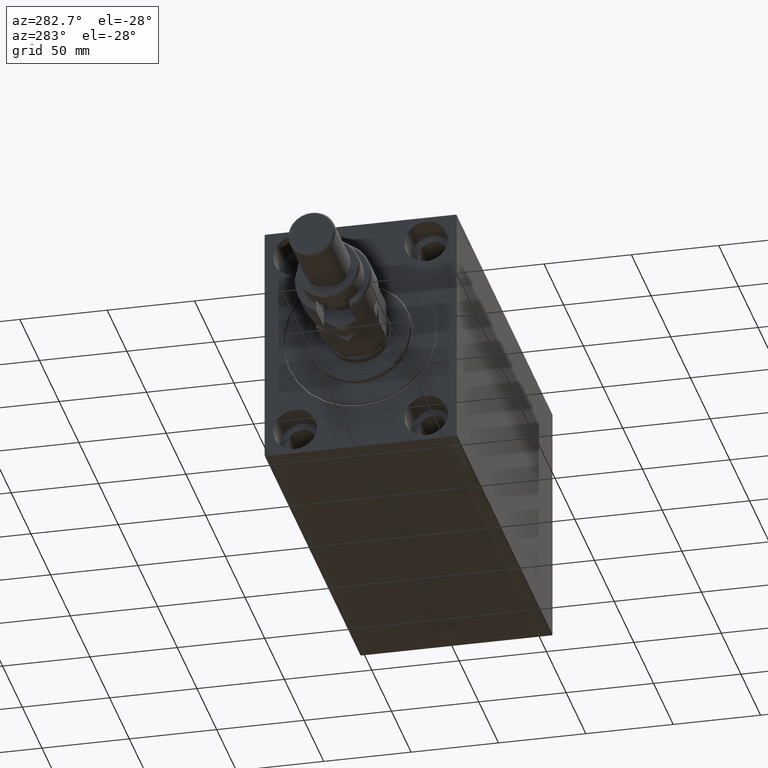
[diagram: clean part render]
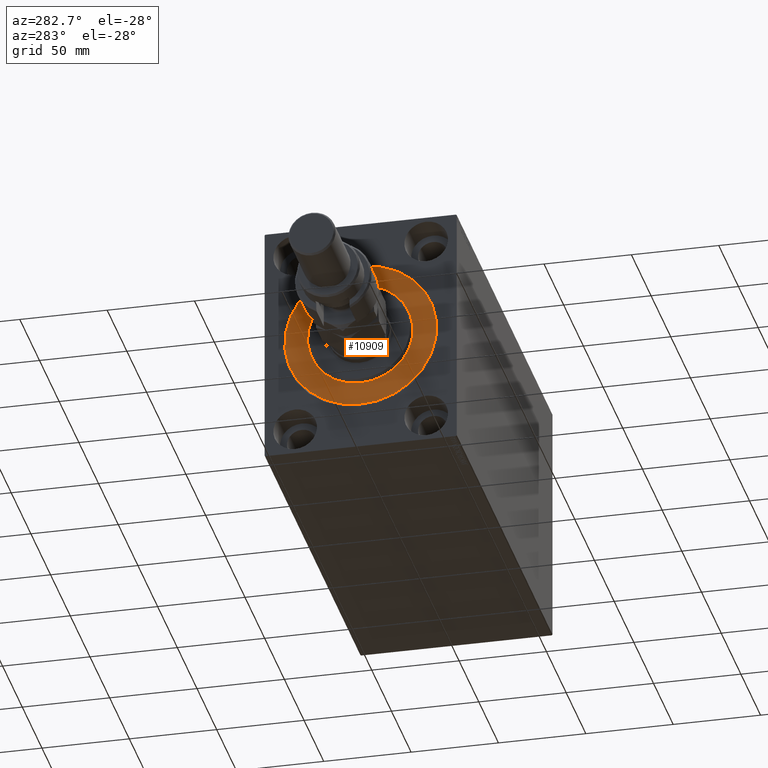
[diagram: same view with one face highlighted and labeled with its STEP entity id]
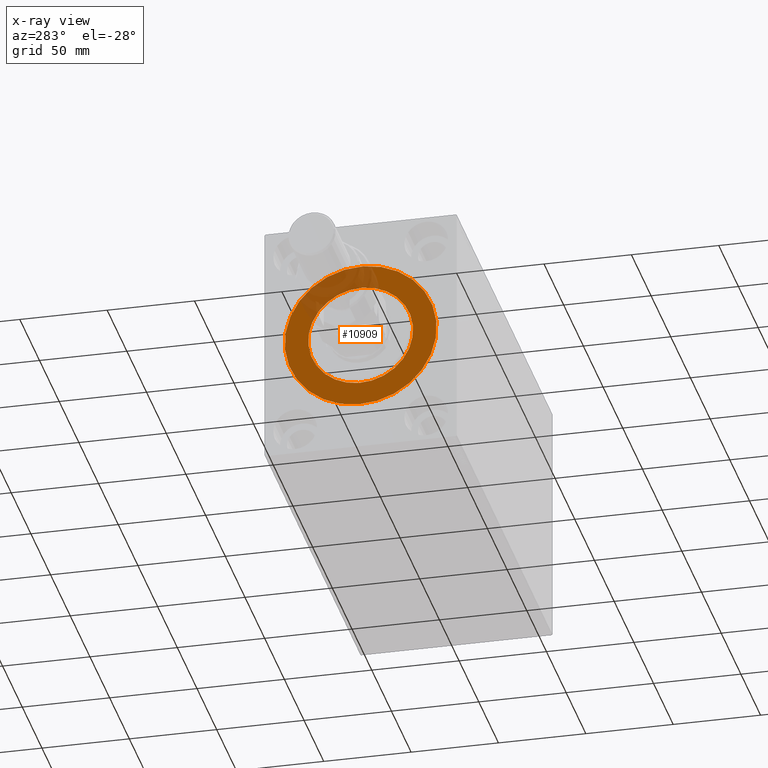
[diagram: x-ray of the same camera — body ghosted, the highlighted face saturated]
A machine part, auxiliary view. The second image highlights one B-rep face of the part: STEP entity #10909.
The next image is the same camera in x-ray: the body ghosted, the highlighted face saturated — about 20% of this face is hidden behind the body in this view.
In plain terms, the highlighted planar face has unit normal (1, 0, -0).
Its self-contained STEP definition (entity closure, byte-faithful):
#27 = AXIS2_PLACEMENT_3D ( 'NONE', #20555, #44895, #26939 ) ;
#103 = ORIENTED_EDGE ( 'NONE', *, *, #6291, .F. ) ;
#187 = AXIS2_PLACEMENT_3D ( 'NONE', #9192, #1411, #12962 ) ;
#271 = CARTESIAN_POINT ( 'NONE',  ( 0.000000000000000000, 0.000000000000000000, 30.00000000000000000 ) ) ;
#492 = EDGE_LOOP ( 'NONE', ( #103, #46536 ) ) ;
#1411 = DIRECTION ( 'NONE',  ( 1.000000000000000000, -0.000000000000000000, 0.000000000000000000 ) ) ;
#2855 = DIRECTION ( 'NONE',  ( -1.000000000000000000, 0.000000000000000000, 0.000000000000000000 ) ) ;
#3322 = DIRECTION ( 'NONE',  ( 0.000000000000000000, 0.000000000000000000, 1.000000000000000000 ) ) ;
#3651 = EDGE_LOOP ( 'NONE', ( #6127, #36936 ) ) ;
#4516 = VERTEX_POINT ( 'NONE', #31352 ) ;
#5693 = FACE_OUTER_BOUND ( 'NONE', #492, .T. ) ;
#6127 = ORIENTED_EDGE ( 'NONE', *, *, #20245, .F. ) ;
#6291 = EDGE_CURVE ( 'NONE', #16352, #7005, #24012, .T. ) ;
#6914 = CARTESIAN_POINT ( 'NONE',  ( 0.000000000000000000, 0.000000000000000000, -43.50000000000000000 ) ) ;
#7005 = VERTEX_POINT ( 'NONE', #46179 ) ;
#7030 = AXIS2_PLACEMENT_3D ( 'NONE', #42031, #28087, #38964 ) ;
#7408 = EDGE_CURVE ( 'NONE', #4516, #35453, #32341, .T. ) ;
#9192 = CARTESIAN_POINT ( 'NONE',  ( 0.000000000000000000, 0.000000000000000000, 0.000000000000000000 ) ) ;
#10909 = ADVANCED_FACE ( 'NONE', ( #34481, #5693 ), #13007, .F. ) ;
#12962 = DIRECTION ( 'NONE',  ( 0.000000000000000000, 0.000000000000000000, -1.000000000000000000 ) ) ;
#13007 = PLANE ( 'NONE',  #27 ) ;
#16352 = VERTEX_POINT ( 'NONE', #6914 ) ;
#18731 = AXIS2_PLACEMENT_3D ( 'NONE', #46063, #2855, #3322 ) ;
#20245 = EDGE_CURVE ( 'NONE', #35453, #4516, #46162, .T. ) ;
#20555 = CARTESIAN_POINT ( 'NONE',  ( 0.000000000000000000, 0.000000000000000000, 0.000000000000000000 ) ) ;
#23222 = EDGE_CURVE ( 'NONE', #7005, #16352, #35670, .T. ) ;
#24012 = CIRCLE ( 'NONE', #18731, 43.50000000000000000 ) ;
#25540 = AXIS2_PLACEMENT_3D ( 'NONE', #34425, #45302, #38210 ) ;
#26939 = DIRECTION ( 'NONE',  ( 0.000000000000000000, 0.000000000000000000, 1.000000000000000000 ) ) ;
#28087 = DIRECTION ( 'NONE',  ( -1.000000000000000000, 0.000000000000000000, 0.000000000000000000 ) ) ;
#31352 = CARTESIAN_POINT ( 'NONE',  ( 0.000000000000000000, 3.673940397442059178E-15, -30.00000000000000000 ) ) ;
#32341 = CIRCLE ( 'NONE', #25540, 30.00000000000000000 ) ;
#34425 = CARTESIAN_POINT ( 'NONE',  ( 0.000000000000000000, 0.000000000000000000, 0.000000000000000000 ) ) ;
#34481 = FACE_BOUND ( 'NONE', #3651, .T. ) ;
#35453 = VERTEX_POINT ( 'NONE', #271 ) ;
#35670 = CIRCLE ( 'NONE', #7030, 43.50000000000000000 ) ;
#36936 = ORIENTED_EDGE ( 'NONE', *, *, #7408, .F. ) ;
#38210 = DIRECTION ( 'NONE',  ( 0.000000000000000000, 0.000000000000000000, -1.000000000000000000 ) ) ;
#38964 = DIRECTION ( 'NONE',  ( 0.000000000000000000, 0.000000000000000000, 1.000000000000000000 ) ) ;
#42031 = CARTESIAN_POINT ( 'NONE',  ( 0.000000000000000000, 0.000000000000000000, 0.000000000000000000 ) ) ;
#44895 = DIRECTION ( 'NONE',  ( -1.000000000000000000, 0.000000000000000000, 0.000000000000000000 ) ) ;
#45302 = DIRECTION ( 'NONE',  ( 1.000000000000000000, -0.000000000000000000, 0.000000000000000000 ) ) ;
#46063 = CARTESIAN_POINT ( 'NONE',  ( 0.000000000000000000, 0.000000000000000000, 0.000000000000000000 ) ) ;
#46162 = CIRCLE ( 'NONE', #187, 30.00000000000000000 ) ;
#46179 = CARTESIAN_POINT ( 'NONE',  ( 0.000000000000000000, 5.327213576290986044E-15, 43.50000000000000000 ) ) ;
#46536 = ORIENTED_EDGE ( 'NONE', *, *, #23222, .F. ) ;